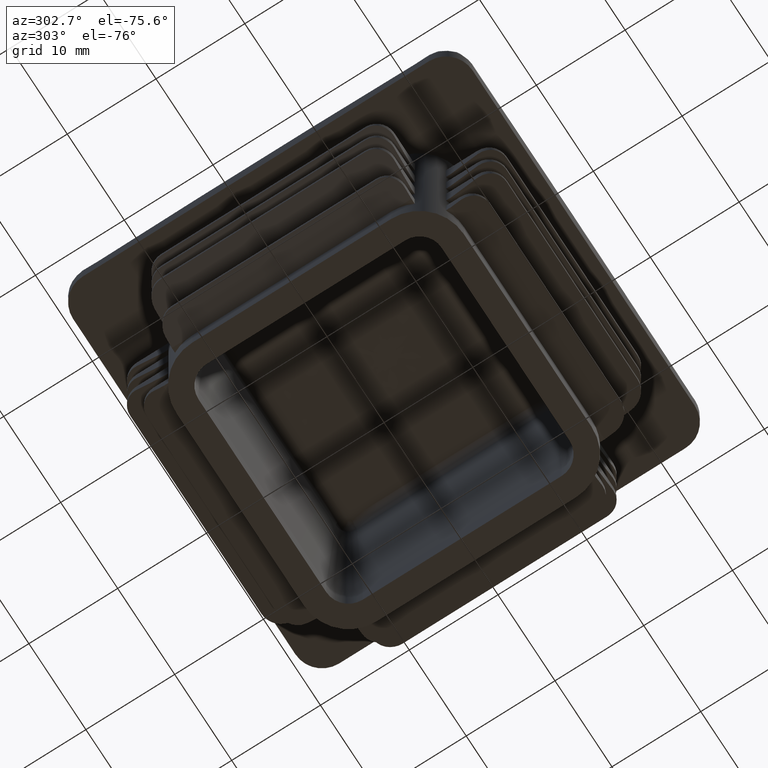
[diagram: clean part render]
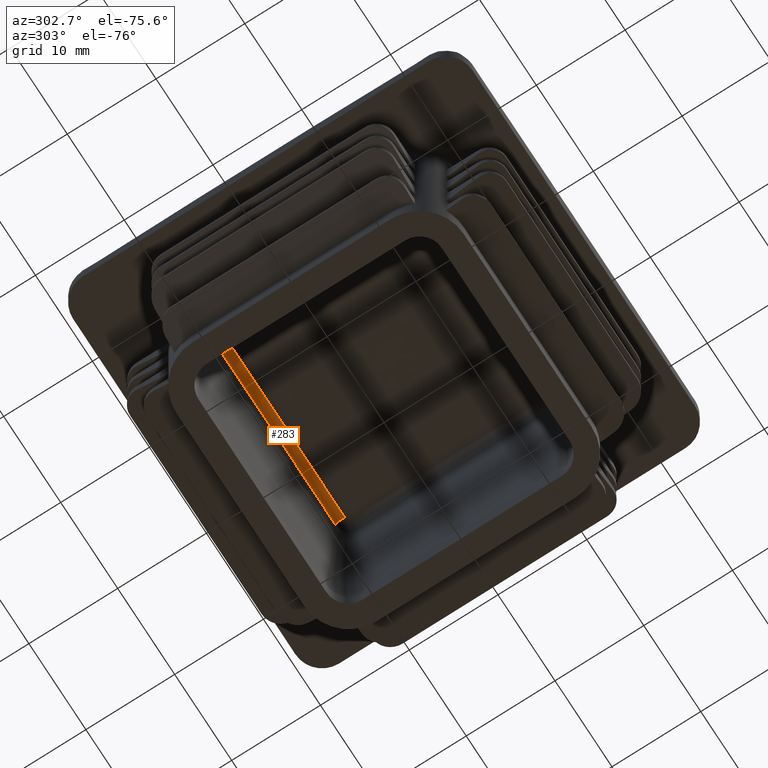
[diagram: same view with one face highlighted and labeled with its STEP entity id]
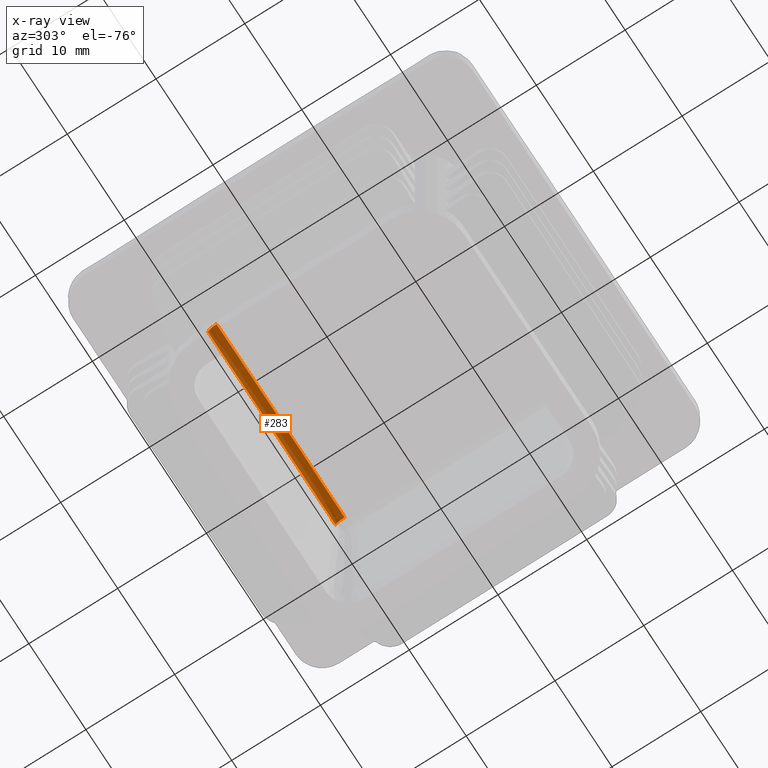
[diagram: x-ray of the same camera — body ghosted, the highlighted face saturated]
A machine part, auxiliary view. The second image highlights one B-rep face of the part: STEP entity #283.
The next image is the same camera in x-ray: the body ghosted, the highlighted face saturated — about 12% of this face is hidden behind the body in this view.
In plain terms, the highlighted face is a freeform B-spline surface patch.
Its self-contained STEP definition (entity closure, byte-faithful):
#283 = ADVANCED_FACE( '', ( #788 ), #789, .F. );
#788 = FACE_OUTER_BOUND( '', #2695, .T. );
#789 = ( B_SPLINE_SURFACE( 3, 2, ( ( #2697, #2698, #2699 ), ( #2700, #2701, #2702 ), ( #2703, #2704, #2705 ), ( #2706, #2707, #2708 ), ( #2709, #2710, #2711 ), ( #2712, #2713, #2714 ), ( #2715, #2716, #2717 ), ( #2718, #2719, #2720 ), ( #2721, #2722, #2723 ), ( #2724, #2725, #2726 ), ( #2727, #2728, #2729 ), ( #2730, #2731, #2732 ), ( #2733, #2734, #2735 ), ( #2736, #2737, #2738 ), ( #2739, #2740, #2741 ), ( #2742, #2743, #2744 ), ( #2745, #2746, #2747 ), ( #2748, #2749, #2750 ) ), .UNSPECIFIED., .F., .F., .F. )B_SPLINE_SURFACE_WITH_KNOTS( ( 4, 2, 2, 2, 2, 2, 2, 2, 4 ), ( 3, 3 ), ( -3.46944695195361E-018, 0.00280007920030936, 0.00560015840061873, 0.00840023760092810, 0.0112003168012375, 0.0140003960015468, 0.0168004752018562, 0.0196005544021656, 0.0224006336024749 ), ( 0.000000000000000, 1.00000000000000 ), .UNSPECIFIED. )RATIONAL_B_SPLINE_SURFACE( ( ( 1.00000000000000, 0.734662333444678, 1.00000000000000 ), ( 1.00000000000000, 0.734575622361978, 1.00000000000000 ), ( 1.00000000000000, 0.734483411736772, 1.00000000000000 ), ( 1.00000000000000, 0.734297495921027, 1.00000000000000 ), ( 1.00000000000000, 0.734203563029026, 1.00000000000000 ), ( 1.00000000000000, 0.734033224558871, 1.00000000000000 ), ( 1.00000000000000, 0.733957210656439, 1.00000000000000 ), ( 1.00000000000000, 0.733850109973243, 1.00000000000000 ), ( 1.00000000000000, 0.733819859681508, 1.00000000000000 ), ( 1.00000000000000, 0.733819838867428, 1.00000000000000 ), ( 1.00000000000000, 0.733850076742690, 1.00000000000000 ), ( 1.00000000000000, 0.733957164499014, 1.00000000000000 ), ( 1.00000000000000, 0.734033184079622, 1.00000000000000 ), ( 1.00000000000000, 0.734203541531920, 1.00000000000000 ), ( 1.00000000000000, 0.734297484247998, 1.00000000000000 ), ( 1.00000000000000, 0.734483411514549, 1.00000000000000 ), ( 1.00000000000000, 0.734575624124734, 1.00000000000000 ), ( 1.00000000000000, 0.734662333444679, 1.00000000000000 ) ) )BOUNDED_SURFACE(  )REPRESENTATION_ITEM( '' )GEOMETRIC_REPRESENTATION_ITEM(  )SURFACE(  ) );
#2695 = EDGE_LOOP( '', ( #5223, #5224, #5225, #5226 ) );
#2697 = CARTESIAN_POINT( '', ( 11.2000000000000, 12.6351327028848, 23.3188784505474 ) );
#2698 = CARTESIAN_POINT( '', ( 11.2242491563299, 12.5868190878065, 24.2407571437345 ) );
#2699 = CARTESIAN_POINT( '', ( 11.2261759333869, 11.6636992691824, 24.2658298366634 ) );
#2700 = CARTESIAN_POINT( '', ( 10.2667908975897, 12.6338497627500, 23.3433584066213 ) );
#2701 = CARTESIAN_POINT( '', ( 10.2887967669206, 12.5855206458115, 24.2655328927777 ) );
#2702 = CARTESIAN_POINT( '', ( 10.2905390955018, 11.6621570487629, 24.2903804427656 ) );
#2703 = CARTESIAN_POINT( '', ( 9.33355756717686, 12.6327456419395, 23.3644262867252 ) );
#2704 = CARTESIAN_POINT( '', ( 9.35336327909564, 12.5844007669341, 24.2869014548538 ) );
#2705 = CARTESIAN_POINT( '', ( 9.35492599377733, 11.6607788562598, 24.3115091240467 ) );
#2706 = CARTESIAN_POINT( '', ( 7.46704455963137, 12.6308782385564, 23.4000584659307 ) );
#2707 = CARTESIAN_POINT( '', ( 7.48256740209435, 12.5825024930356, 24.3231226785838 ) );
#2708 = CARTESIAN_POINT( '', ( 7.48378358477301, 11.6583591748507, 24.3472441377866 ) );
#2709 = CARTESIAN_POINT( '', ( 6.53376492190410, 12.6301148773820, 23.4146242648405 ) );
#2710 = CARTESIAN_POINT( '', ( 6.54720605906698, 12.5817240068630, 24.3379770796478 ) );
#2711 = CARTESIAN_POINT( '', ( 6.54825543901981, 11.6573173536840, 24.3618519736580 ) );
#2712 = CARTESIAN_POINT( '', ( 4.66716222768472, 12.6289078571565, 23.4376555827478 ) );
#2713 = CARTESIAN_POINT( '', ( 4.67657585537350, 12.5804900193139, 24.3615229647515 ) );
#2714 = CARTESIAN_POINT( '', ( 4.67730593900634, 11.6556059691422, 24.3849497600051 ) );
#2715 = CARTESIAN_POINT( '', ( 3.73383920930080, 12.6284639175186, 23.4461264556599 ) );
#2716 = CARTESIAN_POINT( '', ( 3.74130830859547, 12.5800342913011, 24.3702187732330 ) );
#2717 = CARTESIAN_POINT( '', ( 3.74188601750131, 11.6549372754379, 24.3934450798781 ) );
#2718 = CARTESIAN_POINT( '', ( 1.86715252879653, 12.6278753072172, 23.4573578092761 ) );
#2719 = CARTESIAN_POINT( '', ( 1.87083590450039, 12.5794291661632, 24.3817652487386 ) );
#2720 = CARTESIAN_POINT( '', ( 1.87111949192912, 11.6540321285986, 24.4047088472289 ) );
#2721 = CARTESIAN_POINT( '', ( 0.933788914549824, 12.6277302840527, 23.4601250161008 ) );
#2722 = CARTESIAN_POINT( '', ( 0.935630270743705, 12.5792795327539, 24.3846204242435 ) );
#2723 = CARTESIAN_POINT( '', ( 0.935772024129828, 11.6537977701195, 24.4074840402430 ) );
#2724 = CARTESIAN_POINT( '', ( -0.932977693689000, 12.6277301996407, 23.4601266267783 ) );
#2725 = CARTESIAN_POINT( '', ( -0.934817450220976, 12.5792794457611, 24.3846220841921 ) );
#2726 = CARTESIAN_POINT( '', ( -0.934959080460099, 11.6537976358311, 24.4074856555083 ) );
#2727 = CARTESIAN_POINT( '', ( -1.86638068762172, 12.6278751379679, 23.4573610387450 ) );
#2728 = CARTESIAN_POINT( '', ( -1.87006252211435, 12.5794289918239, 24.3817685753220 ) );
#2729 = CARTESIAN_POINT( '', ( -1.87034599041417, 11.6540318611845, 24.4047120860191 ) );
#2730 = CARTESIAN_POINT( '', ( -3.73322723323969, 12.6284636504726, 23.4461315512005 ) );
#2731 = CARTESIAN_POINT( '', ( -3.74069506732058, 12.5800340171037, 24.3702240052415 ) );
#2732 = CARTESIAN_POINT( '', ( -3.74127267731824, 11.6549368719252, 24.3934501901234 ) );
#2733 = CARTESIAN_POINT( '', ( -4.66669410045862, 12.6289075932143, 23.4376606190648 ) );
#2734 = CARTESIAN_POINT( '', ( -4.67610673422272, 12.5804897490225, 24.3615281222174 ) );
#2735 = CARTESIAN_POINT( '', ( -4.67683673947710, 11.6556055854178, 24.3849548108285 ) );
#2736 = CARTESIAN_POINT( '', ( -6.53355389104878, 12.6301147021674, 23.4146276081339 ) );
#2737 = CARTESIAN_POINT( '', ( -6.54699455674433, 12.5817238281858, 24.3379804890133 ) );
#2738 = CARTESIAN_POINT( '', ( -6.54804389890118, 11.6573171147425, 24.3618553266287 ) );
#2739 = CARTESIAN_POINT( '', ( -7.46692756833095, 12.6308781287716, 23.4000605607477 ) );
#2740 = CARTESIAN_POINT( '', ( -7.48245014484840, 12.5825023813306, 24.3231248100164 ) );
#2741 = CARTESIAN_POINT( '', ( -7.48366630607780, 11.6583590304134, 24.3472462386568 ) );
#2742 = CARTESIAN_POINT( '', ( -9.33355513540412, 12.6327456322447, 23.3644264717142 ) );
#2743 = CARTESIAN_POINT( '', ( -9.35336083924240, 12.5844007571844, 24.2869016409155 ) );
#2744 = CARTESIAN_POINT( '', ( -9.35492355320159, 11.6607788458817, 24.3115093095622 ) );
#2745 = CARTESIAN_POINT( '', ( -10.2668089857675, 12.6338497876116, 23.3433579322337 ) );
#2746 = CARTESIAN_POINT( '', ( -10.2888148987900, 12.5855206709832, 24.2655324126465 ) );
#2747 = CARTESIAN_POINT( '', ( -10.2905572309597, 11.6621570786491, 24.2903799669012 ) );
#2748 = CARTESIAN_POINT( '', ( -11.2000000000000, 12.6351327028848, 23.3188784505474 ) );
#2749 = CARTESIAN_POINT( '', ( -11.2242491563299, 12.5868190878065, 24.2407571437345 ) );
#2750 = CARTESIAN_POINT( '', ( -11.2261759333869, 11.6636992691824, 24.2658298366634 ) );
#5223 = ORIENTED_EDGE( '', *, *, #5844, .T. );
#5224 = ORIENTED_EDGE( '', *, *, #6067, .F. );
#5225 = ORIENTED_EDGE( '', *, *, #6489, .F. );
#5226 = ORIENTED_EDGE( '', *, *, #6055, .F. );
#5844 = EDGE_CURVE( '', #6620, #6618, #6621, .T. );
#6055 = EDGE_CURVE( '', #6620, #7002, #7003, .T. );
#6067 = EDGE_CURVE( '', #7016, #6618, #7018, .T. );
#6489 = EDGE_CURVE( '', #7002, #7016, #7717, .T. );
#6618 = VERTEX_POINT( '', #8074 );
#6620 = VERTEX_POINT( '', #8116 );
#6621 = CIRCLE( '', #8117, 1.00000000000000 );
#7002 = VERTEX_POINT( '', #9586 );
#7003 = B_SPLINE_CURVE_WITH_KNOTS( '', 3, ( #9587, #9588, #9589, #9590, #9591, #9592, #9593, #9594, #9595, #9596, #9597, #9598, #9599, #9600, #9601, #9602, #9603, #9604, #9605 ), .UNSPECIFIED., .F., .F., ( 4, 2, 2, 2, 2, 1, 2, 2, 2, 4 ), ( 0.000000000000000, 0.00280699890384199, 0.00561399780768398, 0.00701749725960498, 0.00842099671152597, 0.0112279956153680, 0.0140349945192100, 0.0168419934230519, 0.0196489923268939, 0.0224559912307359 ), .UNSPECIFIED. );
#7016 = VERTEX_POINT( '', #9732 );
#7018 = B_SPLINE_CURVE_WITH_KNOTS( '', 3, ( #9735, #9736, #9737, #9738, #9739, #9740, #9741, #9742, #9743, #9744, #9745, #9746, #9747, #9748, #9749, #9750, #9751, #9752, #9753 ), .UNSPECIFIED., .F., .F., ( 4, 2, 2, 2, 1, 2, 2, 2, 2, 4 ), ( 0.000000000000000, 0.00280007920030937, 0.00560015840061874, 0.00840023760092811, 0.0112003168012375, 0.0140003960015468, 0.0154004356017015, 0.0168004752018562, 0.0196005544021656, 0.0224006336024749 ), .UNSPECIFIED. );
#7717 = CIRCLE( '', #10926, 1.00000000000000 );
#8074 = CARTESIAN_POINT( '', ( -11.2000000000000, 12.6351327028848, 23.3188784505474 ) );
#8116 = CARTESIAN_POINT( '', ( -11.2261759333869, 11.6636992691824, 24.2658298366635 ) );
#8117 = AXIS2_PLACEMENT_3D( '', #11082, #11083, #11084 );
#9586 = CARTESIAN_POINT( '', ( 11.2261759333869, 11.6636992691824, 24.2658298366635 ) );
#9587 = CARTESIAN_POINT( '', ( -11.2261759333869, 11.6636992691824, 24.2658298366635 ) );
#9588 = CARTESIAN_POINT( '', ( -10.2908039530544, 11.6621574853290, 24.2903734930463 ) );
#9589 = CARTESIAN_POINT( '', ( -9.35536893021386, 11.6607794916529, 24.3114994603208 ) );
#9590 = CARTESIAN_POINT( '', ( -7.48437863465381, 11.6583598817719, 24.3472339774171 ) );
#9591 = CARTESIAN_POINT( '', ( -6.54882338984974, 11.6573179307656, 24.3618440228282 ) );
#9592 = CARTESIAN_POINT( '', ( -5.14540582280811, 11.6560341181051, 24.3791713073451 ) );
#9593 = CARTESIAN_POINT( '', ( -4.67758203010695, 11.6556529684730, 24.3841829873291 ) );
#9594 = CARTESIAN_POINT( '', ( -3.74195617618142, 11.6549913616061, 24.3927279110767 ) );
#9595 = CARTESIAN_POINT( '', ( -3.27414852141630, 11.6547109544664, 24.3962614581410 ) );
#9596 = CARTESIAN_POINT( '', ( -1.87074091418321, 11.6540319695758, 24.4047108059876 ) );
#9597 = CARTESIAN_POINT( '', ( 0.000428421719662897, 11.6535633025321, 24.4102605219984 ) );
#9598 = CARTESIAN_POINT( '', ( 1.87151845251650, 11.6540322384342, 24.4047075496991 ) );
#9599 = CARTESIAN_POINT( '', ( 3.74256768606137, 11.6549376884991, 24.3934398703698 ) );
#9600 = CARTESIAN_POINT( '', ( 4.67807185771809, 11.6556065664934, 24.3849419887907 ) );
#9601 = CARTESIAN_POINT( '', ( 6.54903665785796, 11.6573181716073, 24.3618406433094 ) );
#9602 = CARTESIAN_POINT( '', ( 7.48449724893188, 11.6583600278301, 24.3472318531289 ) );
#9603 = CARTESIAN_POINT( '', ( 9.35537199837500, 11.6607795029578, 24.3114992605562 ) );
#9604 = CARTESIAN_POINT( '', ( 10.2907861459452, 11.6621574559774, 24.2903739602952 ) );
#9605 = CARTESIAN_POINT( '', ( 11.2261759333869, 11.6636992691824, 24.2658298366634 ) );
#9732 = CARTESIAN_POINT( '', ( 11.2000000000000, 12.6351327028848, 23.3188784505474 ) );
#9735 = CARTESIAN_POINT( '', ( 11.2000000000000, 12.6351327028848, 23.3188784505474 ) );
#9736 = CARTESIAN_POINT( '', ( 10.2667909263144, 12.6338497627882, 23.3433584058920 ) );
#9737 = CARTESIAN_POINT( '', ( 9.33355756717695, 12.6327456419385, 23.3644262867439 ) );
#9738 = CARTESIAN_POINT( '', ( 7.46704455963128, 12.6308782385573, 23.4000584659119 ) );
#9739 = CARTESIAN_POINT( '', ( 6.53376492190370, 12.6301148773817, 23.4146242648455 ) );
#9740 = CARTESIAN_POINT( '', ( 4.66716222768512, 12.6289078571568, 23.4376555827428 ) );
#9741 = CARTESIAN_POINT( '', ( 3.73383920930084, 12.6284639175190, 23.4461264556521 ) );
#9742 = CARTESIAN_POINT( '', ( 1.86715252879649, 12.6278753072168, 23.4573578092840 ) );
#9743 = CARTESIAN_POINT( '', ( 0.000425300244143211, 12.6275852613171, 23.4628922147421 ) );
#9744 = CARTESIAN_POINT( '', ( -1.86638068762176, 12.6278751379675, 23.4573610387539 ) );
#9745 = CARTESIAN_POINT( '', ( -3.26651559683518, 12.6283165223467, 23.4489389230822 ) );
#9746 = CARTESIAN_POINT( '', ( -3.73323232145586, 12.6285011161541, 23.4454166634112 ) );
#9747 = CARTESIAN_POINT( '', ( -4.66667625909974, 12.6289475322370, 23.4368985371135 ) );
#9748 = CARTESIAN_POINT( '', ( -5.13340904810581, 12.6292093704535, 23.4319023663154 ) );
#9749 = CARTESIAN_POINT( '', ( -6.53355389104946, 12.6301147021657, 23.4146276081674 ) );
#9750 = CARTESIAN_POINT( '', ( -7.46692756833070, 12.6308781287722, 23.4000605607364 ) );
#9751 = CARTESIAN_POINT( '', ( -9.33355513540438, 12.6327456322441, 23.3644264717255 ) );
#9752 = CARTESIAN_POINT( '', ( -10.2668089975849, 12.6338497876319, 23.3433579318461 ) );
#9753 = CARTESIAN_POINT( '', ( -11.2000000000000, 12.6351327028848, 23.3188784505474 ) );
#10926 = AXIS2_PLACEMENT_3D( '', #11909, #11910, #11911 );
#11082 = CARTESIAN_POINT( '', ( -11.2000000000000, 11.6365031681302, 23.2665424943045 ) );
#11083 = DIRECTION( '', ( -0.999655174123000, 0.00137428765083371, -0.0262229705138149 ) );
#11084 = DIRECTION( '', ( -0.0262229952770735, 4.76801810129252E-021, 0.999656118131980 ) );
#11909 = CARTESIAN_POINT( '', ( 11.2000000000000, 11.6365031681302, 23.2665424943045 ) );
#11910 = DIRECTION( '', ( -0.999655174123000, -0.00137428765083722, 0.0262229705138150 ) );
#11911 = DIRECTION( '', ( 0.0262229952770736, 4.76801810130469E-021, 0.999656118131980 ) );